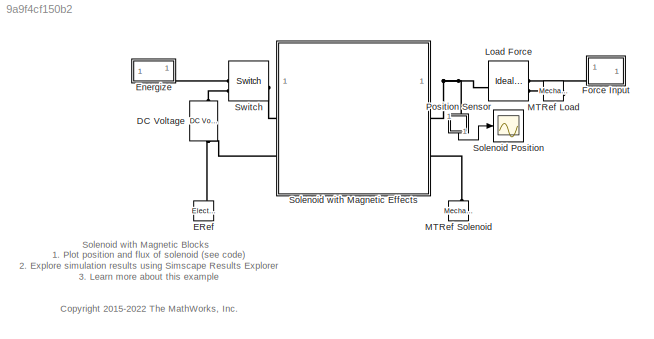
MODEL slx_9a9f4cf150b2
KIND model
CONFIG AbsTol = auto
CONFIG EnableMultiTasking = off
CONFIG FixedStep = auto
CONFIG MaxStep = auto
CONFIG MinStep = auto
CONFIG RelTol = 1e-3
CONFIG SampleTimeConstraint = Unconstrained
CONFIG SolverName = VariableStepAuto
CONFIG StartTime = 0.0
CONFIG StopTime = 10.0
BLOCK [Reference] DC Voltage  REF=fl_lib/Electrical/Electrical Sources/DC Voltage Source
  AttributesFormatString = %<v0> %<v0_unit>
  NameLocation = left
  SourceBlock = fl_lib/Electrical/Electrical Sources/DC Voltage Source
  SourceType = DC Voltage Source
BLOCK [Reference] ERef  REF=fl_lib/Electrical/Electrical Elements/Electrical Reference
  NameLocation = right
  SourceBlock = fl_lib/Electrical/Electrical Elements/Electrical Reference
  SourceType = Electrical Reference
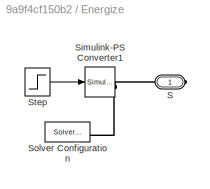
BLOCK [SubSystem] Energize
  NameLocation = top
BLOCK [PMIOPort] Energize/S
  Side = Right
BLOCK [Reference] Energize/Simulink-PS Converter1  REF=nesl_utility/Simulink-PS
Converter
  SourceBlock = nesl_utility/Simulink-PS\nConverter
  SourceType = Simulink-PS\nConverter
BLOCK [Reference] Energize/Solver Configuration  REF=nesl_utility/Solver
Configuration
  SourceBlock = nesl_utility/Solver\nConfiguration
  SourceType = Solver\nConfiguration
BLOCK [Step] Energize/Step
  SampleTime = 0
  Time = 0.1
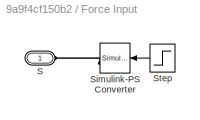
BLOCK [SubSystem] Force Input
BLOCK [PMIOPort] Force Input/S
  Side = Left
BLOCK [Reference] Force Input/Simulink-PS Converter  REF=nesl_utility/Simulink-PS
Converter
  SourceBlock = nesl_utility/Simulink-PS\nConverter
  SourceType = Simulink-PS\nConverter
BLOCK [Step] Force Input/Step
  After = 10
  SampleTime = 0
  Time = 0.3
BLOCK [Reference] Load Force  REF=fl_lib/Mechanical/Mechanical Sources/Ideal Force Source
  NameLocation = top
  SourceBlock = fl_lib/Mechanical/Mechanical Sources/Ideal Force Source
  SourceType = Ideal Force Source
BLOCK [Reference] MTRef Load  REF=fl_lib/Mechanical/Translational
Elements/Mechanical
Translational
Reference
  SourceBlock = fl_lib/Mechanical/Translational\nElements/Mechanical\nTranslational\nReference
  SourceType = Mechanical\nTranslational\nReference
BLOCK [Reference] MTRef Solenoid  REF=fl_lib/Mechanical/Translational
Elements/Mechanical
Translational
Reference
  NameLocation = right
  SourceBlock = fl_lib/Mechanical/Translational\nElements/Mechanical\nTranslational\nReference
  SourceType = Mechanical\nTranslational\nReference
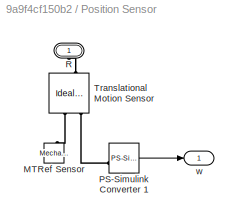
BLOCK [SubSystem] Position Sensor
  NameLocation = left
BLOCK [Reference] Position Sensor/MTRef Sensor  REF=fl_lib/Mechanical/Translational
Elements/Mechanical
Translational
Reference
  NameLocation = left
  SourceBlock = fl_lib/Mechanical/Translational\nElements/Mechanical\nTranslational\nReference
  SourceType = Mechanical\nTranslational\nReference
BLOCK [Reference] Position Sensor/PS-Simulink Converter 1  REF=nesl_utility/PS-Simulink
Converter
  SourceBlock = nesl_utility/PS-Simulink\nConverter
  SourceType = PS-Simulink\nConverter
BLOCK [PMIOPort] Position Sensor/R
  NameLocation = right
  Side = Left
BLOCK [Reference] Position Sensor/Translational Motion Sensor  REF=fl_lib/Mechanical/Mechanical Sensors/Ideal Translational
Motion Sensor
  NameLocation = left
  SourceBlock = fl_lib/Mechanical/Mechanical Sensors/Ideal Translational\nMotion Sensor
  SourceType = Ideal Translational\nMotion Sensor
BLOCK [Outport] Position Sensor/w
  VectorParamsAs1DForOutWhenUnconnected = off
BLOCK [Scope] Solenoid Position
  Floating = off
  NumInputPorts = 1
  ScopeSpecificationString = Simulink.scopes.TimeScopeBlockCfg('CurrentConfiguration', extmgr.ConfigurationSet(extmgr.Configuration('Core','General UI',true,'FigureColor',[0.501960784313725 0.501960784313725 0.501960784313725]),extmgr.Configuration('Core','Source UI',true),extmgr.Configuration('Sources','WiredSimulink',true,'DataLoggingSaveFormat','StructureWithTime','DataLoggingDecimation','1'),extmgr.Configuration('Visuals'...<+2666ch>
  Tag = PublishScope
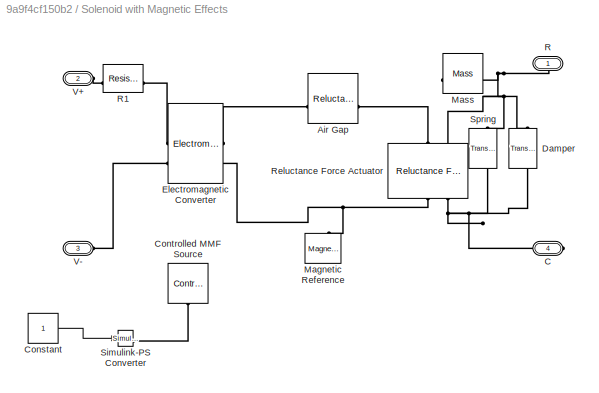
BLOCK [SubSystem] Solenoid with Magnetic Effects
  Tag = PublishSubsystem
BLOCK [Reference] Solenoid with Magnetic Effects/ Air Gap  REF=fl_lib/Magnetic/Magnetic Elements/Reluctance
  NameLocation = top
  SourceBlock = fl_lib/Magnetic/Magnetic Elements/Reluctance
  SourceType = Reluctance
BLOCK [PMIOPort] Solenoid with Magnetic Effects/C
  Port = 4
  Side = Right
BLOCK [Constant] Solenoid with Magnetic Effects/Constant
  Commented = on
BLOCK [Reference] Solenoid with Magnetic Effects/Controlled MMF Source  REF=fl_lib/Magnetic/Magnetic Sources/Controlled MMF
Source
  Commented = on
  NameLocation = right
  SourceBlock = fl_lib/Magnetic/Magnetic Sources/Controlled MMF\nSource
  SourceType = Controlled MMF\nSource
BLOCK [Reference] Solenoid with Magnetic Effects/Damper  REF=fl_lib/Mechanical/Translational
Elements/Translational Damper
  NameLocation = right
  SourceBlock = fl_lib/Mechanical/Translational\nElements/Translational Damper
  SourceType = Translational Damper
BLOCK [Reference] Solenoid with Magnetic Effects/Electromagnetic Converter  REF=fl_lib/Magnetic/Magnetic Elements/Electromagnetic
Converter
  SourceBlock = fl_lib/Magnetic/Magnetic Elements/Electromagnetic\nConverter
  SourceType = Electromagnetic\nConverter
BLOCK [Reference] Solenoid with Magnetic Effects/Magnetic Reference  REF=fl_lib/Magnetic/Magnetic Elements/Magnetic Reference
  NameLocation = right
  SourceBlock = fl_lib/Magnetic/Magnetic Elements/Magnetic Reference
  SourceType = Magnetic Reference
BLOCK [Reference] Solenoid with Magnetic Effects/Mass  REF=fl_lib/Mechanical/Translational
Elements/Mass
  NameLocation = top
  SourceBlock = fl_lib/Mechanical/Translational\nElements/Mass
  SourceType = Mass
BLOCK [PMIOPort] Solenoid with Magnetic Effects/R
  Side = Right
BLOCK [Reference] Solenoid with Magnetic Effects/R1  REF=fl_lib/Electrical/Electrical Elements/Resistor
  SourceBlock = fl_lib/Electrical/Electrical Elements/Resistor
  SourceType = Resistor
BLOCK [Reference] Solenoid with Magnetic Effects/Reluctance Force Actuator  REF=fl_lib/Magnetic/Magnetic Elements/Reluctance Force
Actuator
  NameLocation = left
  SourceBlock = fl_lib/Magnetic/Magnetic Elements/Reluctance Force\nActuator
  SourceType = Reluctance Force\nActuator
BLOCK [Reference] Solenoid with Magnetic Effects/Simulink-PS Converter  REF=nesl_utility/Simulink-PS
Converter
  Commented = on
  SourceBlock = nesl_utility/Simulink-PS\nConverter
  SourceType = Simulink-PS\nConverter
BLOCK [Reference] Solenoid with Magnetic Effects/Spring  REF=fl_lib/Mechanical/Translational
Elements/Translational Spring
  NameLocation = left
  SourceBlock = fl_lib/Mechanical/Translational\nElements/Translational Spring
  SourceType = Translational Spring
BLOCK [PMIOPort] Solenoid with Magnetic Effects/V+
  Port = 2
  Side = Left
BLOCK [PMIOPort] Solenoid with Magnetic Effects/V-
  Port = 3
  Side = Left
BLOCK [Reference] Switch  REF=fl_lib/Electrical/Electrical Elements/Switch
  SourceBlock = fl_lib/Electrical/Electrical Elements/Switch
  SourceType = Switch
ANNOTATION (root): 1. Plot position and flux of solenoid ( see code ) 2. Explore simulation results using Simscape Results Explorer 3. Learn more about this example
ANNOTATION (root): Solenoid with Magnetic Blocks
ANNOTATION (root): <copyright redacted>
LINE Energize/Step:1 -> Energize/Simulink-PS Converter1:1
LINE Force Input/Step:1 -> Force Input/Simulink-PS Converter:1
LINE Position Sensor/PS-Simulink Converter 1:1 -> Position Sensor/w:1
LINE Position Sensor:1 -> Solenoid Position:1
LINE Solenoid with Magnetic Effects/Constant:1 -> Solenoid with Magnetic Effects/Simulink-PS Converter:1
PLINE DC Voltage:LConn1 -- Switch:RConn2
PNET net1: DC Voltage:RConn1 -- ERef:LConn1 -- Solenoid with Magnetic Effects:LConn2
PNET net2: Energize/S:RConn1 -- Energize/Simulink-PS Converter1:RConn1 -- Energize/Solver Configuration:RConn1
PLINE Energize:RConn1 -- Switch:RConn1
PLINE Force Input/S:RConn1 -- Force Input/Simulink-PS Converter:RConn1
PLINE Force Input:LConn1 -- Load Force:RConn1
PNET net3: Load Force:LConn1 -- Position Sensor:LConn1 -- Solenoid with Magnetic Effects:RConn1
PLINE Load Force:RConn2 -- MTRef Load:LConn1
PLINE MTRef Solenoid:LConn1 -- Solenoid with Magnetic Effects:RConn2
PLINE Position Sensor/MTRef Sensor:LConn1 -- Position Sensor/Translational Motion Sensor:RConn1
PLINE Position Sensor/PS-Simulink Converter 1:LConn1 -- Position Sensor/Translational Motion Sensor:RConn3
PLINE Position Sensor/R:RConn1 -- Position Sensor/Translational Motion Sensor:LConn1
PLINE Solenoid with Magnetic Effects/ Air Gap:LConn1 -- Solenoid with Magnetic Effects/Electromagnetic Converter:RConn1
PLINE Solenoid with Magnetic Effects/ Air Gap:RConn1 -- Solenoid with Magnetic Effects/Reluctance Force Actuator:LConn1
PNET net4: Solenoid with Magnetic Effects/C:RConn1 -- Solenoid with Magnetic Effects/Damper:RConn1 -- Solenoid with Magnetic Effects/Reluctance Force Actuator:RConn2 -- Solenoid with Magnetic Effects/Spring:RConn1
PLINE Solenoid with Magnetic Effects/Controlled MMF Source:RConn1 -- Solenoid with Magnetic Effects/Simulink-PS Converter:RConn1
PNET net5: Solenoid with Magnetic Effects/Damper:LConn1 -- Solenoid with Magnetic Effects/Mass:LConn1 -- Solenoid with Magnetic Effects/R:RConn1 -- Solenoid with Magnetic Effects/Reluctance Force Actuator:LConn2 -- Solenoid with Magnetic Effects/Spring:LConn1
PLINE Solenoid with Magnetic Effects/Electromagnetic Converter:LConn1 -- Solenoid with Magnetic Effects/R1:RConn1
PLINE Solenoid with Magnetic Effects/Electromagnetic Converter:LConn2 -- Solenoid with Magnetic Effects/V-:RConn1
PNET net6: Solenoid with Magnetic Effects/Electromagnetic Converter:RConn2 -- Solenoid with Magnetic Effects/Magnetic Reference:LConn1 -- Solenoid with Magnetic Effects/Reluctance Force Actuator:RConn1
PLINE Solenoid with Magnetic Effects/R1:LConn1 -- Solenoid with Magnetic Effects/V+:RConn1
PLINE Solenoid with Magnetic Effects:LConn1 -- Switch:LConn1
note: PNET lines group multi-terminal physical nets as a canonical sorted terminal list (undirected conserving connections); 2-terminal nets keep the pairwise PLINE form
